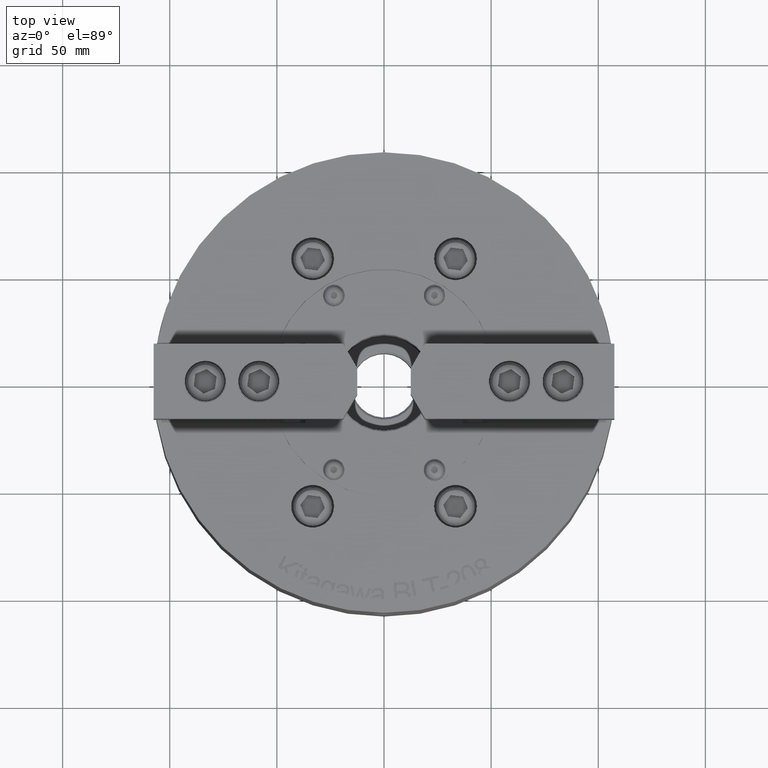
[diagram: clean part render]
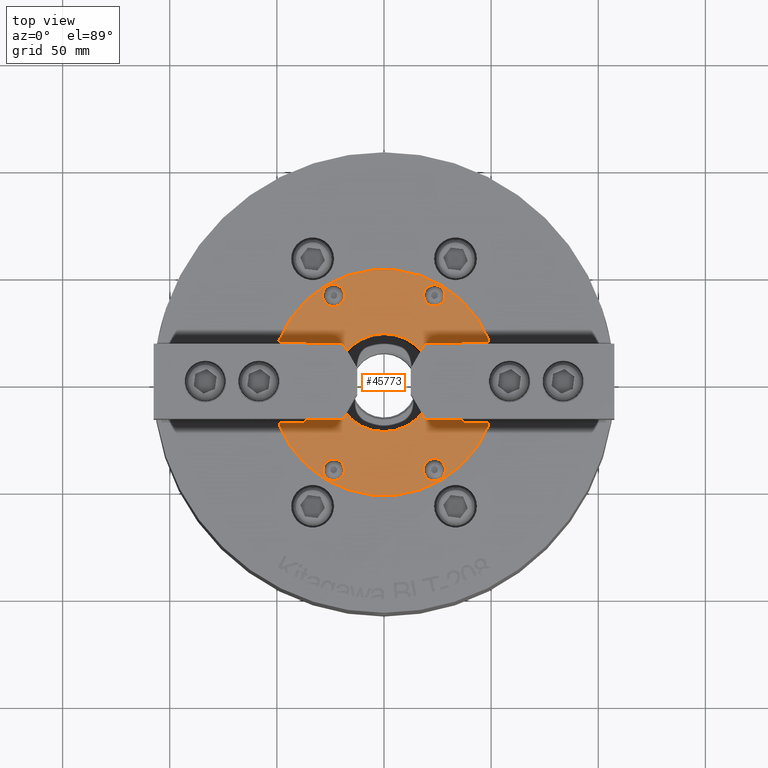
[diagram: same view with one face highlighted and labeled with its STEP entity id]
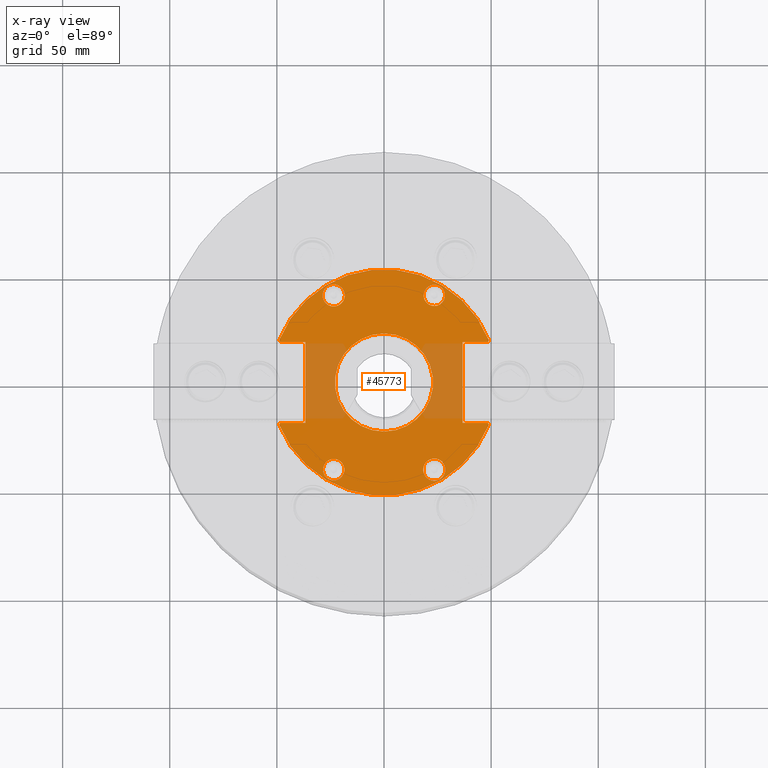
[diagram: x-ray of the same camera — body ghosted, the highlighted face saturated]
A machine part, top view. The second image highlights one B-rep face of the part: STEP entity #45773.
The next image is the same camera in x-ray: the body ghosted, the highlighted face saturated — about 20% of this face is hidden behind the body in this view.
In plain terms, the highlighted planar face has unit normal (0, 0, 1).
Its self-contained STEP definition (entity closure, byte-faithful):
#1796=CIRCLE('',#48872,52.8);
#1797=CIRCLE('',#48873,52.8);
#1798=CIRCLE('',#48874,5.);
#1799=CIRCLE('',#48875,5.);
#1800=CIRCLE('',#48876,22.9);
#1801=CIRCLE('',#48877,5.2);
#1802=CIRCLE('',#48878,5.2);
#14850=ORIENTED_EDGE('',*,*,#21940,.T.);
#14851=ORIENTED_EDGE('',*,*,#21941,.T.);
#14852=ORIENTED_EDGE('',*,*,#21942,.F.);
#14853=ORIENTED_EDGE('',*,*,#21943,.T.);
#14854=ORIENTED_EDGE('',*,*,#21944,.T.);
#14855=ORIENTED_EDGE('',*,*,#21945,.T.);
#14856=ORIENTED_EDGE('',*,*,#21946,.T.);
#14857=ORIENTED_EDGE('',*,*,#21947,.T.);
#14858=ORIENTED_EDGE('',*,*,#21948,.F.);
#14859=ORIENTED_EDGE('',*,*,#21949,.T.);
#14860=ORIENTED_EDGE('',*,*,#21950,.T.);
#14861=ORIENTED_EDGE('',*,*,#21951,.T.);
#14862=ORIENTED_EDGE('',*,*,#21952,.T.);
#14863=ORIENTED_EDGE('',*,*,#21953,.T.);
#14864=ORIENTED_EDGE('',*,*,#21954,.T.);
#14865=ORIENTED_EDGE('',*,*,#21955,.T.);
#14866=ORIENTED_EDGE('',*,*,#21956,.T.);
#21940=EDGE_CURVE('',#26267,#26268,#31851,.T.);
#21941=EDGE_CURVE('',#26268,#26269,#31852,.T.);
#21942=EDGE_CURVE('',#26270,#26269,#31853,.T.);
#21943=EDGE_CURVE('',#26270,#26271,#31854,.T.);
#21944=EDGE_CURVE('',#26271,#26272,#31855,.T.);
#21945=EDGE_CURVE('',#26272,#26273,#1796,.T.);
#21946=EDGE_CURVE('',#26273,#26274,#31856,.T.);
#21947=EDGE_CURVE('',#26274,#26275,#31857,.T.);
#21948=EDGE_CURVE('',#26276,#26275,#31858,.T.);
#21949=EDGE_CURVE('',#26276,#26277,#31859,.T.);
#21950=EDGE_CURVE('',#26277,#26278,#31860,.T.);
#21951=EDGE_CURVE('',#26278,#26267,#1797,.T.);
#21952=EDGE_CURVE('',#26279,#26279,#1798,.T.);
#21953=EDGE_CURVE('',#26280,#26280,#1799,.T.);
#21954=EDGE_CURVE('',#26281,#26281,#1800,.T.);
#21955=EDGE_CURVE('',#26282,#26282,#1801,.T.);
#21956=EDGE_CURVE('',#26283,#26283,#1802,.T.);
#26267=VERTEX_POINT('',#76128);
#26268=VERTEX_POINT('',#76129);
#26269=VERTEX_POINT('',#76131);
#26270=VERTEX_POINT('',#76133);
#26271=VERTEX_POINT('',#76135);
#26272=VERTEX_POINT('',#76137);
#26273=VERTEX_POINT('',#76139);
#26274=VERTEX_POINT('',#76141);
#26275=VERTEX_POINT('',#76143);
#26276=VERTEX_POINT('',#76145);
#26277=VERTEX_POINT('',#76147);
#26278=VERTEX_POINT('',#76149);
#26279=VERTEX_POINT('',#76152);
#26280=VERTEX_POINT('',#76154);
#26281=VERTEX_POINT('',#76156);
#26282=VERTEX_POINT('',#76158);
#26283=VERTEX_POINT('',#76160);
#31851=LINE('',#76127,#37384);
#31852=LINE('',#76130,#37385);
#31853=LINE('',#76132,#37386);
#31854=LINE('',#76134,#37387);
#31855=LINE('',#76136,#37388);
#31856=LINE('',#76140,#37389);
#31857=LINE('',#76142,#37390);
#31858=LINE('',#76144,#37391);
#31859=LINE('',#76146,#37392);
#31860=LINE('',#76148,#37393);
#37384=VECTOR('',#60342,1000.);
#37385=VECTOR('',#60343,1000.);
#37386=VECTOR('',#60344,1000.);
#37387=VECTOR('',#60345,1000.);
#37388=VECTOR('',#60346,1000.);
#37389=VECTOR('',#60349,1000.);
#37390=VECTOR('',#60350,1000.);
#37391=VECTOR('',#60351,1000.);
#37392=VECTOR('',#60352,1000.);
#37393=VECTOR('',#60353,1000.);
#39640=EDGE_LOOP('',(#14850,#14851,#14852,#14853,#14854,#14855,#14856,#14857,
#14858,#14859,#14860,#14861));
#39641=EDGE_LOOP('',(#14862));
#39642=EDGE_LOOP('',(#14863));
#39643=EDGE_LOOP('',(#14864));
#39644=EDGE_LOOP('',(#14865));
#39645=EDGE_LOOP('',(#14866));
#42039=FACE_BOUND('',#39640,.T.);
#42040=FACE_BOUND('',#39641,.T.);
#42041=FACE_BOUND('',#39642,.T.);
#42042=FACE_BOUND('',#39643,.T.);
#42043=FACE_BOUND('',#39644,.T.);
#42044=FACE_BOUND('',#39645,.T.);
#43728=PLANE('',#48871);
#45773=ADVANCED_FACE('',(#42039,#42040,#42041,#42042,#42043,#42044),#43728,
 .T.);
#48871=AXIS2_PLACEMENT_3D('',#76126,#60340,#60341);
#48872=AXIS2_PLACEMENT_3D('',#76138,#60347,#60348);
#48873=AXIS2_PLACEMENT_3D('',#76150,#60354,#60355);
#48874=AXIS2_PLACEMENT_3D('',#76151,#60356,#60357);
#48875=AXIS2_PLACEMENT_3D('',#76153,#60358,#60359);
#48876=AXIS2_PLACEMENT_3D('',#76155,#60360,#60361);
#48877=AXIS2_PLACEMENT_3D('',#76157,#60362,#60363);
#48878=AXIS2_PLACEMENT_3D('',#76159,#60364,#60365);
#60340=DIRECTION('',(0.,0.,1.));
#60341=DIRECTION('',(0.,1.,0.));
#60342=DIRECTION('',(0.559016994374948,-0.82915619758885,0.));
#60343=DIRECTION('',(1.,-1.22460635382238E-16,0.));
#60344=DIRECTION('',(1.22460635382238E-16,1.,0.));
#60345=DIRECTION('',(-1.,1.22460635382238E-16,0.));
#60346=DIRECTION('',(-0.559016994374951,-0.829156197588848,0.));
#60347=DIRECTION('',(0.,0.,1.));
#60348=DIRECTION('',(0.,1.,0.));
#60349=DIRECTION('',(-0.559016994374948,0.82915619758885,0.));
#60350=DIRECTION('',(-1.,0.,0.));
#60351=DIRECTION('',(0.,-1.,0.));
#60352=DIRECTION('',(1.,0.,0.));
#60353=DIRECTION('',(0.559016994374948,0.82915619758885,0.));
#60354=DIRECTION('',(0.,0.,1.));
#60355=DIRECTION('',(0.,1.,0.));
#60356=DIRECTION('',(0.,0.,-1.));
#60357=DIRECTION('',(0.,-1.,0.));
#60358=DIRECTION('',(0.,0.,-1.));
#60359=DIRECTION('',(0.,1.,0.));
#60360=DIRECTION('',(0.,0.,-1.));
#60361=DIRECTION('',(0.,1.,0.));
#60362=DIRECTION('',(0.,0.,-1.));
#60363=DIRECTION('',(0.,1.,0.));
#60364=DIRECTION('',(0.,0.,-1.));
#60365=DIRECTION('',(0.,1.,0.));
#76126=CARTESIAN_POINT('',(-2.34290668463256E-14,53.,-6.93889390390723E-15));
#76127=CARTESIAN_POINT('',(-49.1323149770087,19.875,-6.93889390390723E-15));
#76128=CARTESIAN_POINT('',(-48.9973587227867,19.6748275263229,-6.93889390390723E-15));
#76129=CARTESIAN_POINT('',(-48.4749701111071,18.9,-6.93889390390723E-15));
#76130=CARTESIAN_POINT('',(-36.6905989232415,18.9,-6.93889390390723E-15));
#76131=CARTESIAN_POINT('',(-36.6905989232415,18.9,-6.93889390390723E-15));
#76132=CARTESIAN_POINT('',(-36.6905989232415,-18.5,-6.93889390390723E-15));
#76133=CARTESIAN_POINT('',(-36.6905989232415,-18.9,-6.93889390390723E-15));
#76134=CARTESIAN_POINT('',(-3.22339865303085E-14,-18.9,-6.93889390390723E-15));
#76135=CARTESIAN_POINT('',(-48.4749701111071,-18.9,-6.93889390390723E-15));
#76136=CARTESIAN_POINT('',(2.69995704280318E-13,52.9999999999998,-6.93889390390723E-15));
#76137=CARTESIAN_POINT('',(-48.9973587227867,-19.6748275263229,-6.93889390390723E-15));
#76138=CARTESIAN_POINT('',(-2.34290668463256E-14,0.,-6.93889390390723E-15));
#76139=CARTESIAN_POINT('',(48.9973587227868,-19.6748275263229,-6.93889390390723E-15));
#76140=CARTESIAN_POINT('',(-7.52099088098511E-14,53.,-6.93889390390723E-15));
#76141=CARTESIAN_POINT('',(48.4749701111071,-18.9,-6.93889390390723E-15));
#76142=CARTESIAN_POINT('',(36.6905989232415,-18.9,-6.93889390390723E-15));
#76143=CARTESIAN_POINT('',(36.6905989232415,-18.9,-6.93889390390723E-15));
#76144=CARTESIAN_POINT('',(36.6905989232415,18.5,-6.93889390390723E-15));
#76145=CARTESIAN_POINT('',(36.6905989232415,18.9,-6.93889390390723E-15));
#76146=CARTESIAN_POINT('',(-2.34290668463256E-14,18.9,-6.93889390390723E-15));
#76147=CARTESIAN_POINT('',(48.4749701111071,18.9,-6.93889390390723E-15));
#76148=CARTESIAN_POINT('',(49.1323149770087,19.875,-6.93889390390723E-15));
#76149=CARTESIAN_POINT('',(48.9973587227867,19.6748275263229,-6.93889390390723E-15));
#76150=CARTESIAN_POINT('',(-2.34290668463256E-14,0.,-6.93889390390723E-15));
#76151=CARTESIAN_POINT('',(-23.5,-40.7031939778686,-6.93889390390723E-15));
#76152=CARTESIAN_POINT('',(-23.5,-45.7031939778686,-6.93889390390723E-15));
#76153=CARTESIAN_POINT('',(23.5,40.7031939778686,-6.93889390390723E-15));
#76154=CARTESIAN_POINT('',(23.5,45.7031939778686,-6.93889390390723E-15));
#76155=CARTESIAN_POINT('',(-2.34290668463256E-14,0.,-6.93889390390723E-15));
#76156=CARTESIAN_POINT('',(-2.34290668463256E-14,22.9,-6.93889390390723E-15));
#76157=CARTESIAN_POINT('',(-23.5,40.7031939778686,-6.93889390390723E-15));
#76158=CARTESIAN_POINT('',(-23.5,45.9031939778686,-6.93889390390723E-15));
#76159=CARTESIAN_POINT('',(23.5,-40.7031939778686,-6.93889390390723E-15));
#76160=CARTESIAN_POINT('',(23.5,-35.5031939778686,-6.93889390390723E-15));